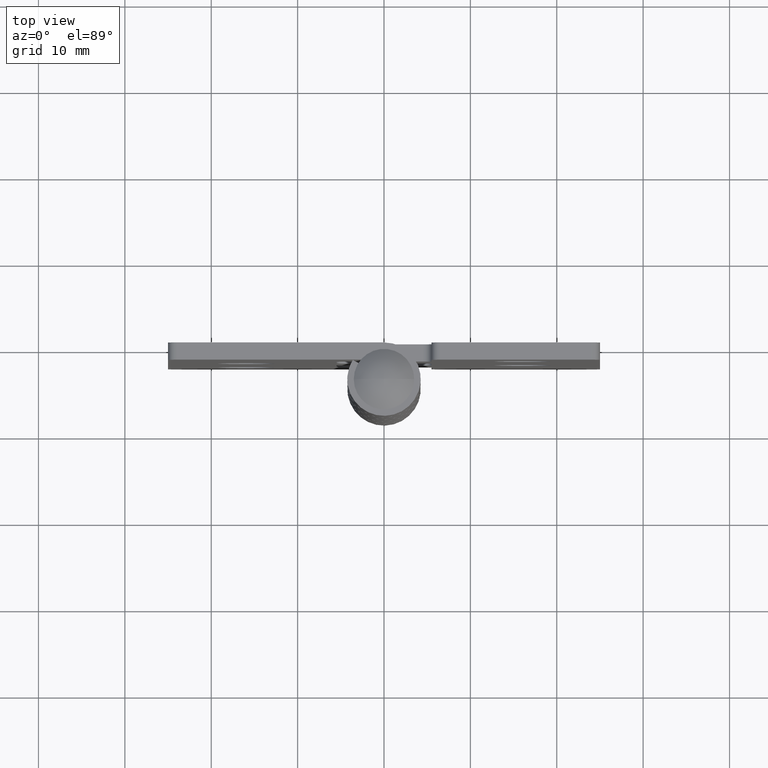
[diagram: clean part render]
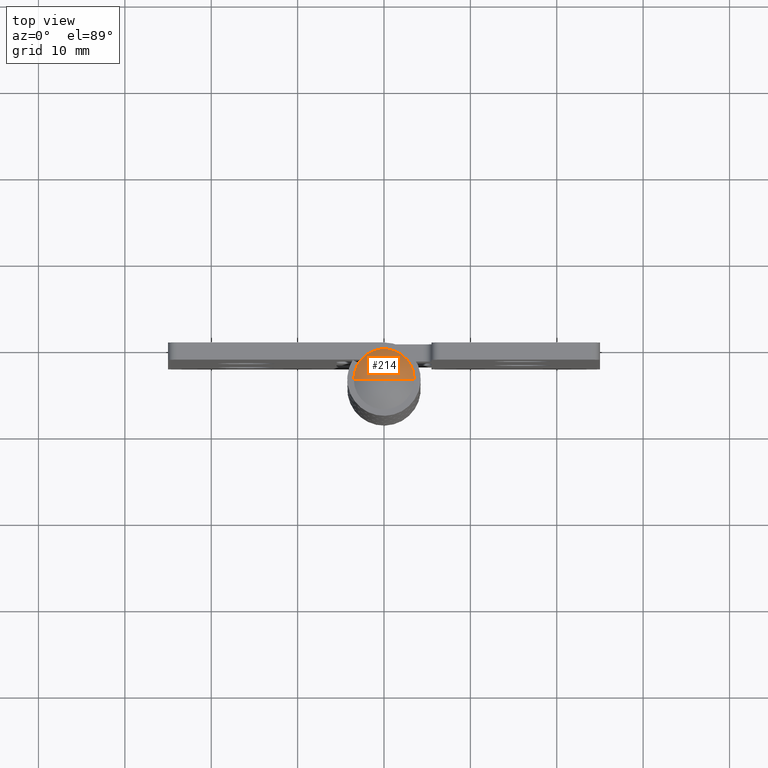
[diagram: same view with one face highlighted and labeled with its STEP entity id]
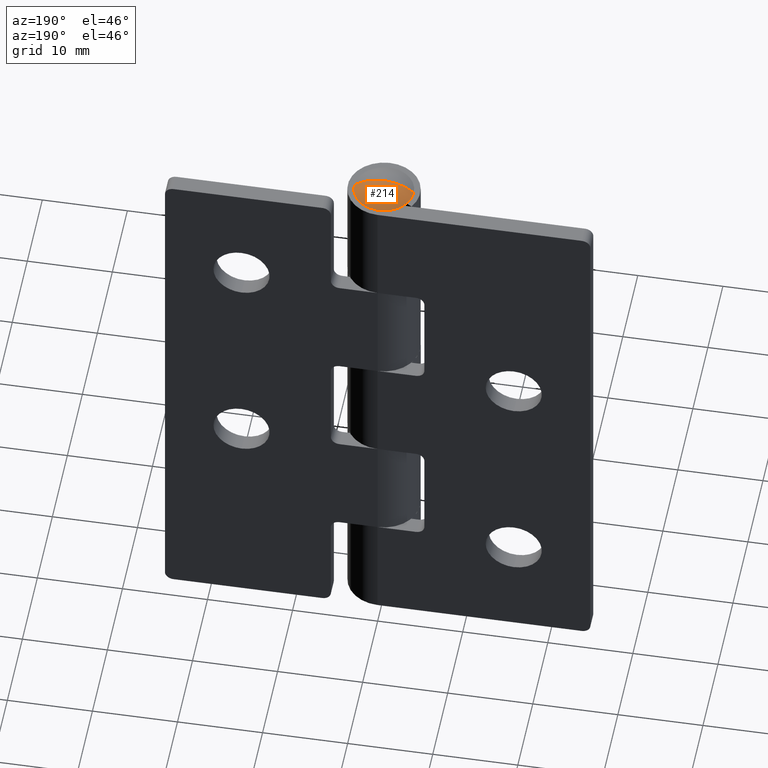
[diagram: same view with one face highlighted and labeled with its STEP entity id]
A machine part, top view. The second image highlights one B-rep face of the part: STEP entity #214.
A second angle (auxiliary view) of the same face is appended — the face is thin or edge-on in the first view.
In plain terms, the highlighted spherical surface has radius 5.075 mm.
Its self-contained STEP definition (entity closure, byte-faithful):
#214=ADVANCED_FACE('',(#878),#877,.T.);
#877=SPHERICAL_SURFACE('',#1245,5.07500000000E+00);
#878=FACE_OUTER_BOUND('',#1246,.T.);
#1242=CARTESIAN_POINT('',(2.27373675443E-13,0.00000000000E+00,6.27250000000E+01));
#1243=DIRECTION('',(-0.00000000000E+00,-0.00000000000E+00,-1.00000000000E+00));
#1244=DIRECTION('',(-1.00000000000E+00,-4.04453249759E-21,0.00000000000E+00));
#1245=AXIS2_PLACEMENT_3D('',#1242,#1243,#1244);
#1246=EDGE_LOOP('',(#1620,#1621,#1622));
#1620=ORIENTED_EDGE('',*,*,#1811,.T.);
#1621=ORIENTED_EDGE('',*,*,#1805,.F.);
#1622=ORIENTED_EDGE('',*,*,#1812,.F.);
#1805=EDGE_CURVE('',#2991,#2992,#2993,.T.);
#1811=EDGE_CURVE('',#3031,#2992,#3032,.T.);
#1812=EDGE_CURVE('',#3031,#2991,#3038,.T.);
#2991=VERTEX_POINT('',#3769);
#2992=VERTEX_POINT('',#3770);
#2993=CIRCLE('',#3774,3.50000000000E+00);
#3031=VERTEX_POINT('',#3793);
#3032=(BOUNDED_CURVE() B_SPLINE_CURVE(2,(#3794,#3795,#3796),.UNSPECIFIED.,.F.,.F.) B_SPLINE_CURVE_WITH_KNOTS((3,3),(0.00000000000E+00,1.00000000000E+00),.UNSPECIFIED.) CURVE() GEOMETRIC_REPRESENTATION_ITEM() RATIONAL_B_SPLINE_CURVE((1.00000000000E+00,9.28476690885E-01,1.00000000000E+00)) REPRESENTATION_ITEM('') );
#3038=(BOUNDED_CURVE() B_SPLINE_CURVE(2,(#3797,#3798,#3799),.UNSPECIFIED.,.F.,.F.) B_SPLINE_CURVE_WITH_KNOTS((3,3),(0.00000000000E+00,1.00000000000E+00),.UNSPECIFIED.) CURVE() GEOMETRIC_REPRESENTATION_ITEM() RATIONAL_B_SPLINE_CURVE((7.50000000000E-01,6.96357518164E-01,7.50000000000E-01)) REPRESENTATION_ITEM('') );
#3769=CARTESIAN_POINT('',(-3.50000000000E+00,0.00000000000E+00,6.64000000000E+01));
#3770=CARTESIAN_POINT('',(3.50000000000E+00,1.48029736617E-16,6.64000000000E+01));
#3771=CARTESIAN_POINT('',(0.00000000000E+00,0.00000000000E+00,6.64000000000E+01));
#3772=DIRECTION('',(-0.00000000000E+00,0.00000000000E+00,-1.00000000000E+00));
#3773=DIRECTION('',(-1.00000000000E+00,-1.22460635382E-16,0.00000000000E+00));
#3774=AXIS2_PLACEMENT_3D('',#3771,#3772,#3773);
#3793=CARTESIAN_POINT('',(2.27684419306E-13,-3.80538908162E-32,6.78000000000E+01));
#3794=CARTESIAN_POINT('',(2.27684419306E-13,-3.80538908162E-32,6.78000000000E+01));
#3795=CARTESIAN_POINT('',(2.03000000000E+00,-2.48595089826E-16,6.78000000000E+01));
#3796=CARTESIAN_POINT('',(3.50000000000E+00,-4.28612223838E-16,6.64000000000E+01));
#3797=CARTESIAN_POINT('',(2.27062931581E-13,1.64346021921E-32,6.78000000000E+01));
#3798=CARTESIAN_POINT('',(-2.03000000000E+00,3.98582264019E-16,6.78000000000E+01));
#3799=CARTESIAN_POINT('',(-3.50000000000E+00,4.44089209850E-16,6.64000000000E+01));